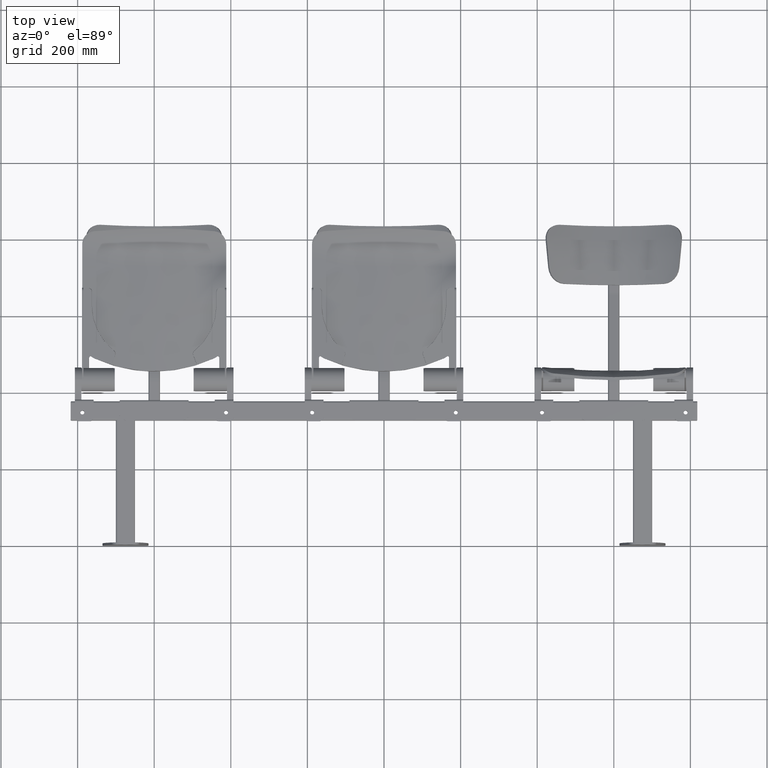
[diagram: clean part render]
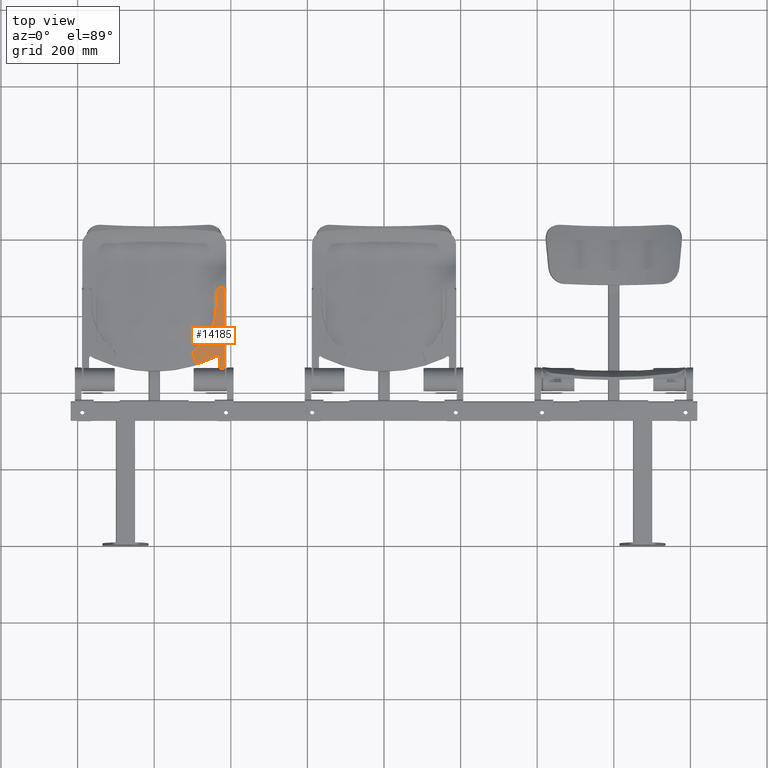
[diagram: same view with one face highlighted and labeled with its STEP entity id]
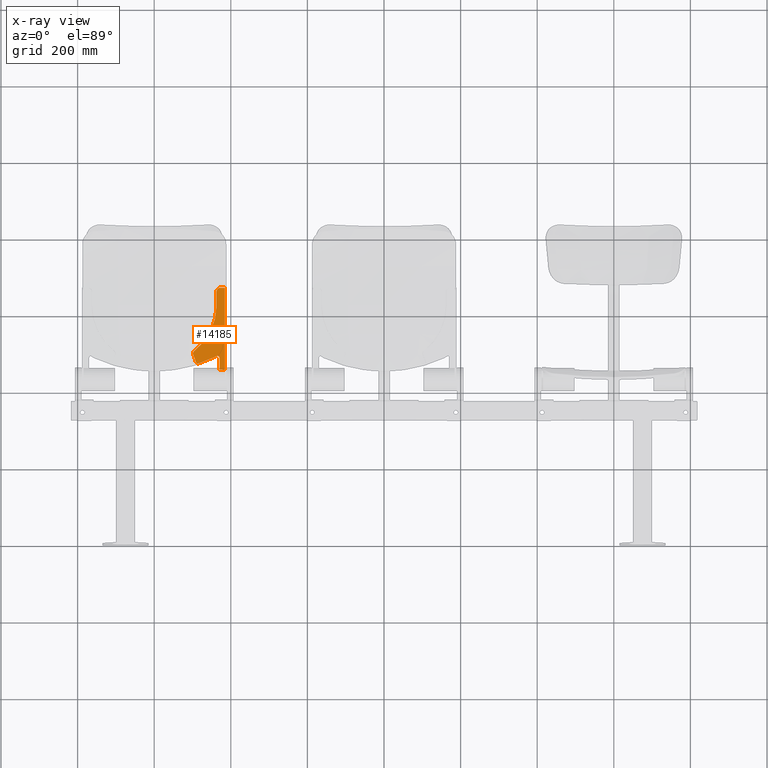
[diagram: x-ray of the same camera — body ghosted, the highlighted face saturated]
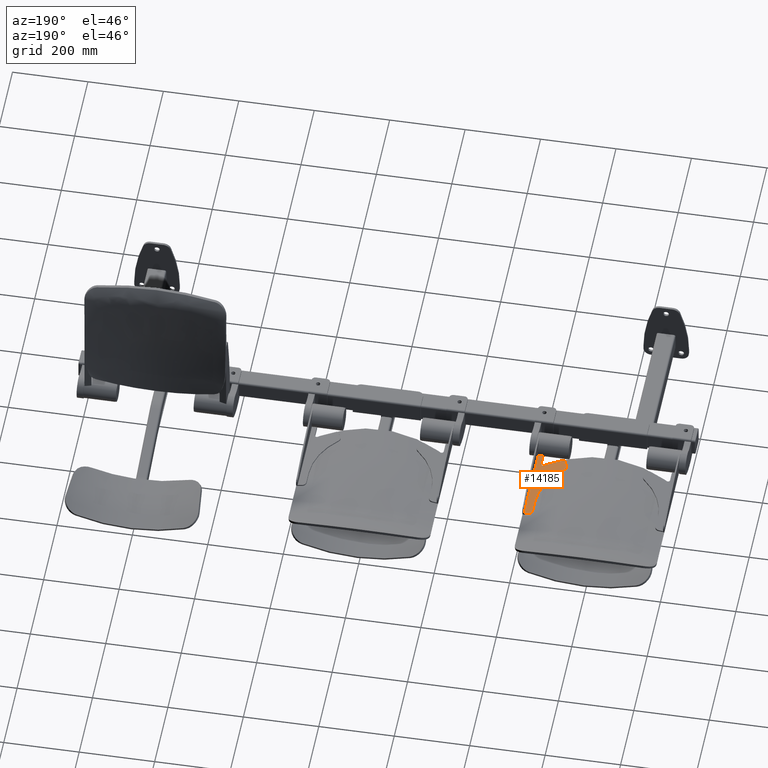
[diagram: same view with one face highlighted and labeled with its STEP entity id]
A machine part, top view. The second image highlights one B-rep face of the part: STEP entity #14185.
The next image is the same camera in x-ray: the body ghosted, the highlighted face saturated — about 0% of this face is hidden behind the body in this view.
A second angle (auxiliary view) of the same face is appended — the face is thin or edge-on in the first view.
In plain terms, the highlighted planar face has unit normal (0.1564, -0, 0.9877).
Its self-contained STEP definition (entity closure, byte-faithful):
#401 = AXIS2_PLACEMENT_3D ( 'NONE', #19710, #19711, #19712 ) ;
#427 = AXIS2_PLACEMENT_3D ( 'NONE', #21362, #21363, #21364 ) ;
#429 = AXIS2_PLACEMENT_3D ( 'NONE', #21370, #21371, #21372 ) ;
#432 = AXIS2_PLACEMENT_3D ( 'NONE', #21381, #21382, #21383 ) ;
#439 = AXIS2_PLACEMENT_3D ( 'NONE', #21427, #21428, #21429 ) ;
#442 = AXIS2_PLACEMENT_3D ( 'NONE', #21451, #21452, #21453 ) ;
#467 = AXIS2_PLACEMENT_3D ( 'NONE', #21669, #21670, #21671 ) ;
#784 = VERTEX_POINT ( 'NONE', #10957 ) ;
#800 = VERTEX_POINT ( 'NONE', #5020 ) ;
#808 = VERTEX_POINT ( 'NONE', #11346 ) ;
#857 = VERTEX_POINT ( 'NONE', #11395 ) ;
#889 = VERTEX_POINT ( 'NONE', #11281 ) ;
#1515 = EDGE_LOOP ( 'NONE', ( #22087, #22092, #22093, #22095, #23181, #23180, #23179, #23178, #23177, #23182, #23183, #23190, #23188, #23185 ) ) ;
#1595 = CARTESIAN_POINT ( 'NONE',  ( 184.4999999999999400, 17.36646223870187100, 240.0000000000000600 ) ) ;
#1680 = CARTESIAN_POINT ( 'NONE',  ( 101.2316191649880600, 4.178046343418358800, 68.00000000000000000 ) ) ;
#1858 = EDGE_CURVE ( 'NONE', #23198, #11177, #7162, .T. ) ;
#1862 = EDGE_CURVE ( 'NONE', #800, #6320, #7175, .T. ) ;
#1863 = EDGE_CURVE ( 'NONE', #6320, #23198, #7177, .T. ) ;
#3658 = VERTEX_POINT ( 'NONE', #15527 ) ;
#5020 = CARTESIAN_POINT ( 'NONE',  ( 184.5000000000000000, 17.36646223870187800, 25.07301316778149000 ) ) ;
#6274 = CARTESIAN_POINT ( 'NONE',  ( 162.8201031445264600, 13.93270390895408400, 194.1889626906064200 ) ) ;
#6320 = VERTEX_POINT ( 'NONE', #1595 ) ;
#7162 = CIRCLE ( 'NONE', #10393, 10.00000000000000400 ) ;
#7175 = LINE ( 'NONE', #22252, #7178 ) ;
#7177 = LINE ( 'NONE', #22254, #7180 ) ;
#7178 = VECTOR ( 'NONE', #22253, 1000.000000000000000 ) ;
#7180 = VECTOR ( 'NONE', #22255, 1000.000000000000100 ) ;
#10393 = AXIS2_PLACEMENT_3D ( 'NONE', #22244, #22245, #22246 ) ;
#10957 = CARTESIAN_POINT ( 'NONE',  ( 156.4679448583186200, 12.92662087394021200, 58.39610507003595100 ) ) ;
#11039 = VERTEX_POINT ( 'NONE', #1680 ) ;
#11143 = VERTEX_POINT ( 'NONE', #6274 ) ;
#11170 = VERTEX_POINT ( 'NONE', #22617 ) ;
#11177 = VERTEX_POINT ( 'NONE', #22631 ) ;
#11198 = VERTEX_POINT ( 'NONE', #22677 ) ;
#11281 = CARTESIAN_POINT ( 'NONE',  ( 102.1389009300046700, 4.321745657987156300, 64.07117290526275600 ) ) ;
#11346 = CARTESIAN_POINT ( 'NONE',  ( 161.3694929007365900, 13.70294981736237900, 61.25785339527701000 ) ) ;
#11395 = CARTESIAN_POINT ( 'NONE',  ( 115.8345847285777900, 6.490928871285945900, 42.38871304120412000 ) ) ;
#14185 = ADVANCED_FACE ( 'NONE', ( #18522 ), #19690, .T. ) ;
#14474 = EDGE_CURVE ( 'NONE', #800, #11198, #22149, .T. ) ;
#14483 = EDGE_CURVE ( 'NONE', #857, #784, #22142, .T. ) ;
#14484 = EDGE_CURVE ( 'NONE', #11170, #857, #18593, .T. ) ;
#14487 = EDGE_CURVE ( 'NONE', #889, #11170, #18594, .T. ) ;
#14491 = EDGE_CURVE ( 'NONE', #22234, #11039, #18600, .T. ) ;
#14510 = EDGE_CURVE ( 'NONE', #11143, #22234, #18631, .T. ) ;
#14515 = EDGE_CURVE ( 'NONE', #11177, #11143, #18639, .T. ) ;
#14520 = EDGE_CURVE ( 'NONE', #11039, #889, #18648, .T. ) ;
#14521 = EDGE_CURVE ( 'NONE', #3658, #11198, #18650, .T. ) ;
#14614 = EDGE_CURVE ( 'NONE', #784, #808, #22144, .T. ) ;
#14615 = EDGE_CURVE ( 'NONE', #808, #3658, #18811, .T. ) ;
#15527 = CARTESIAN_POINT ( 'NONE',  ( 170.7216098692874800, 15.18417962927588700, 56.36212323050915500 ) ) ;
#18522 = FACE_OUTER_BOUND ( 'NONE', #1515, .T. ) ;
#18593 = CIRCLE ( 'NONE', #427, 6.000000000000000900 ) ;
#18594 = CIRCLE ( 'NONE', #429, 78.54951598798517400 ) ;
#18600 = CIRCLE ( 'NONE', #432, 8.861119606528033500 ) ;
#18631 = CIRCLE ( 'NONE', #439, 150.0000000000000000 ) ;
#18639 = LINE ( 'NONE', #21437, #18642 ) ;
#18642 = VECTOR ( 'NONE', #21438, 1000.000000000000000 ) ;
#18648 = CIRCLE ( 'NONE', #442, 8.861119606528033500 ) ;
#18650 = LINE ( 'NONE', #21444, #18652 ) ;
#18652 = VECTOR ( 'NONE', #21445, 1000.000000000000000 ) ;
#18811 = CIRCLE ( 'NONE', #467, 6.000000000000015100 ) ;
#19690 = PLANE ( 'NONE',  #401 ) ;
#19710 = CARTESIAN_POINT ( 'NONE',  ( 188.5000000000000000, 17.99999999999997500, 24.00000000000002100 ) ) ;
#19711 = DIRECTION ( 'NONE',  ( 0.1564344650402282300, -0.9876883405951382100, 4.930380657631317800E-032 ) ) ;
#19712 = DIRECTION ( 'NONE',  ( 0.9876883405951381000, 0.1564344650402282000, 3.081487911019577000E-033 ) ) ;
#21325 = CARTESIAN_POINT ( 'NONE',  ( 180.0314288730249900, 16.65871010170555200, 25.56322751414897400 ) ) ;
#21326 = CARTESIAN_POINT ( 'NONE',  ( 184.5000000000000000, 17.36646223870187800, 25.07301316778149000 ) ) ;
#21329 = CARTESIAN_POINT ( 'NONE',  ( 175.4358879174290800, 15.93084791946501600, 26.02305339040149000 ) ) ;
#21330 = CARTESIAN_POINT ( 'NONE',  ( 170.7216098692875300, 15.18417962927588700, 26.45166703604678900 ) ) ;
#21352 = CARTESIAN_POINT ( 'NONE',  ( 121.0291771942353700, 7.313671491673182400, 44.09541452675191700 ) ) ;
#21353 = CARTESIAN_POINT ( 'NONE',  ( 115.8345847285777900, 6.490928871285945900, 42.38871304120412000 ) ) ;
#21358 = CARTESIAN_POINT ( 'NONE',  ( 130.4643752618502500, 8.808060056963508800, 47.42494512259559500 ) ) ;
#21359 = CARTESIAN_POINT ( 'NONE',  ( 143.9868613779747800, 10.94981145226216100, 52.80810874746322300 ) ) ;
#21360 = CARTESIAN_POINT ( 'NONE',  ( 152.3334460117188800, 12.27178058809909800, 56.48463061604963500 ) ) ;
#21361 = CARTESIAN_POINT ( 'NONE',  ( 156.4679448583186200, 12.92662087394021200, 58.39610507003595100 ) ) ;
#21362 = CARTESIAN_POINT ( 'NONE',  ( 114.0054066925034100, 6.201215531788378100, 48.09574150558560000 ) ) ;
#21363 = DIRECTION ( 'NONE',  ( 0.1564344650402278400, -0.9876883405951382100, 4.930380657631317200E-032 ) ) ;
#21364 = DIRECTION ( 'NONE',  ( -0.9876883405951381000, -0.1564344650402282300, 2.312964634635742300E-015 ) ) ;
#21370 = CARTESIAN_POINT ( 'NONE',  ( 32.59907144850242100, -6.692281314704069400, 29.24403137060388500 ) ) ;
#21371 = DIRECTION ( 'NONE',  ( -0.1564344650402278400, 0.9876883405951382100, -4.930380657631317200E-032 ) ) ;
#21372 = DIRECTION ( 'NONE',  ( -0.9876883405951382100, -0.1564344650402282300, 0.0000000000000000000 ) ) ;
#21381 = CARTESIAN_POINT ( 'NONE',  ( 109.9836436849747700, 5.564230848723043200, 68.00000000000000000 ) ) ;
#21382 = DIRECTION ( 'NONE',  ( 0.1564344650402278400, -0.9876883405951382100, 4.930380657631317200E-032 ) ) ;
#21383 = DIRECTION ( 'NONE',  ( -0.9876883405951382100, -0.1564344650402282600, -7.830719155167829100E-015 ) ) ;
#21427 = CARTESIAN_POINT ( 'NONE',  ( 14.66685205525569900, -9.532465847080180400, 194.1889626906064200 ) ) ;
#21428 = DIRECTION ( 'NONE',  ( -0.1564344650402278400, 0.9876883405951382100, -4.930380657631317200E-032 ) ) ;
#21429 = DIRECTION ( 'NONE',  ( 0.9876883405951382100, 0.1564344650402282000, 0.0000000000000000000 ) ) ;
#21437 = CARTESIAN_POINT ( 'NONE',  ( 162.8201031445264800, 13.93270390895408400, 24.00000000000002100 ) ) ;
#21438 = DIRECTION ( 'NONE',  ( -0.0000000000000000000, 2.465190328815658600E-032, -1.000000000000000000 ) ) ;
#21444 = CARTESIAN_POINT ( 'NONE',  ( 170.7216098692874800, 15.18417962927588700, 24.00000000000002100 ) ) ;
#21445 = DIRECTION ( 'NONE',  ( -0.0000000000000000000, 2.465190328815658600E-032, -1.000000000000000000 ) ) ;
#21451 = CARTESIAN_POINT ( 'NONE',  ( 109.9836436849747700, 5.564230848723043200, 68.00000000000000000 ) ) ;
#21452 = DIRECTION ( 'NONE',  ( 0.1564344650402278400, -0.9876883405951382100, 4.930380657631317200E-032 ) ) ;
#21453 = DIRECTION ( 'NONE',  ( -0.9876883405951382100, -0.1564344650402282600, 0.0000000000000000000 ) ) ;
#21652 = CARTESIAN_POINT ( 'NONE',  ( 158.1786469737849600, 13.19756947106034100, 59.18700255755887700 ) ) ;
#21659 = CARTESIAN_POINT ( 'NONE',  ( 156.4679448583186200, 12.92662087394021200, 58.39610507003595100 ) ) ;
#21666 = CARTESIAN_POINT ( 'NONE',  ( 159.8259902814102400, 13.45848301886089800, 60.15062874789018100 ) ) ;
#21667 = CARTESIAN_POINT ( 'NONE',  ( 161.3694929007365900, 13.70294981736237900, 61.25785339527701000 ) ) ;
#21669 = CARTESIAN_POINT ( 'NONE',  ( 164.7954798257166000, 14.24557283903450700, 56.36212323050915500 ) ) ;
#21670 = DIRECTION ( 'NONE',  ( -0.1564344650402278400, 0.9876883405951382100, -4.930380657631317200E-032 ) ) ;
#21671 = DIRECTION ( 'NONE',  ( -0.9876883405951381000, -0.1564344650402282900, 0.0000000000000000000 ) ) ;
#21783 = CARTESIAN_POINT ( 'NONE',  ( 104.6669652350594500, 4.722151708047689100, 75.03869829316761300 ) ) ;
#21786 = CARTESIAN_POINT ( 'NONE',  ( 172.6969865504779300, 15.49704855935636700, 240.0000000000000600 ) ) ;
#22087 = ORIENTED_EDGE ( 'NONE', *, *, #14615, .T. ) ;
#22092 = ORIENTED_EDGE ( 'NONE', *, *, #14521, .T. ) ;
#22093 = ORIENTED_EDGE ( 'NONE', *, *, #14474, .F. ) ;
#22095 = ORIENTED_EDGE ( 'NONE', *, *, #1862, .T. ) ;
#22142 = B_SPLINE_CURVE_WITH_KNOTS ( 'NONE', 3,
 ( #21353, #21352, #21358, #21359, #21360, #21361 ),
 .UNSPECIFIED., .F., .F.,
 ( 4, 1, 1, 4 ),
 ( 0.0000000000000000000, 0.01662052629308584000, 0.03039689810841027200, 0.04417326992373470100 ),
 .UNSPECIFIED. ) ;
#22144 = B_SPLINE_CURVE_WITH_KNOTS ( 'NONE', 3,
 ( #21659, #21652, #21666, #21667 ),
 .UNSPECIFIED., .F., .F.,
 ( 4, 4 ),
 ( 0.0000000000000000000, 0.005735807049085677200 ),
 .UNSPECIFIED. ) ;
#22149 =( BOUNDED_CURVE ( )  B_SPLINE_CURVE ( 3, ( #21326, #21325, #21329, #21330 ),
 .UNSPECIFIED., .F., .T. ) 
 B_SPLINE_CURVE_WITH_KNOTS ( ( 4, 4 ),
 ( 0.9650300122145949500, 1.049687659456672600 ),
 .UNSPECIFIED. ) 
 CURVE ( )  GEOMETRIC_REPRESENTATION_ITEM ( )  RATIONAL_B_SPLINE_CURVE ( ( 1.000000000000000000, 0.9994028460664582400, 0.9994028460664582400, 1.000000000000000000 ) ) 
 REPRESENTATION_ITEM ( '' )  );
#22234 = VERTEX_POINT ( 'NONE', #21783 ) ;
#22244 = CARTESIAN_POINT ( 'NONE',  ( 172.6969865504779000, 15.49704855935636700, 230.0000000000000300 ) ) ;
#22245 = DIRECTION ( 'NONE',  ( 0.1564344650402278400, -0.9876883405951382100, 1.713366151378962800E-015 ) ) ;
#22246 = DIRECTION ( 'NONE',  ( -0.9876883405951382100, -0.1564344650402282300, -2.775557561562890600E-015 ) ) ;
#22252 = CARTESIAN_POINT ( 'NONE',  ( 184.5000000000000000, 17.36646223870187800, 15.46796148254697700 ) ) ;
#22253 = DIRECTION ( 'NONE',  ( -0.0000000000000000000, -2.465190328815658600E-032, 1.000000000000000000 ) ) ;
#22254 = CARTESIAN_POINT ( 'NONE',  ( 184.5000000000000000, 17.36646223870181400, 240.0000000000000600 ) ) ;
#22255 = DIRECTION ( 'NONE',  ( -0.9876883405951379900, -0.1564344650402285100, -3.081487911019577000E-033 ) ) ;
#22617 = CARTESIAN_POINT ( 'NONE',  ( 108.2284604172176500, 5.286237129192353600, 46.75794247163295100 ) ) ;
#22631 = CARTESIAN_POINT ( 'NONE',  ( 162.8201031445264800, 13.93270390895408400, 230.0000000000000300 ) ) ;
#22677 = CARTESIAN_POINT ( 'NONE',  ( 170.7216098692875300, 15.18417962927588700, 26.45166703604678900 ) ) ;
#23177 = ORIENTED_EDGE ( 'NONE', *, *, #14491, .T. ) ;
#23178 = ORIENTED_EDGE ( 'NONE', *, *, #14510, .T. ) ;
#23179 = ORIENTED_EDGE ( 'NONE', *, *, #14515, .T. ) ;
#23180 = ORIENTED_EDGE ( 'NONE', *, *, #1858, .T. ) ;
#23181 = ORIENTED_EDGE ( 'NONE', *, *, #1863, .T. ) ;
#23182 = ORIENTED_EDGE ( 'NONE', *, *, #14520, .T. ) ;
#23183 = ORIENTED_EDGE ( 'NONE', *, *, #14487, .T. ) ;
#23185 = ORIENTED_EDGE ( 'NONE', *, *, #14614, .T. ) ;
#23188 = ORIENTED_EDGE ( 'NONE', *, *, #14483, .T. ) ;
#23190 = ORIENTED_EDGE ( 'NONE', *, *, #14484, .T. ) ;
#23198 = VERTEX_POINT ( 'NONE', #21786 ) ;